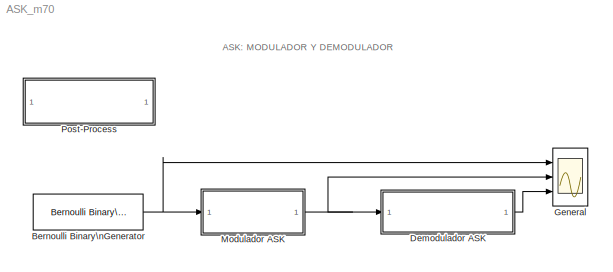
MODEL ASK_m70
KIND model
BLOCK [Reference] Bernoulli Binary\nGenerator  REF=commrandsrc2/Bernoulli Binary\nGenerator
  DialogController = commDDGCreate
  DialogControllerArgs = DataTag0
  FunctionWithSeparateData = off
  P = PZa
  Ports = [0, 1]
  RTWMemSecDataConstants = Inherit from model
  RTWMemSecDataInternal = Inherit from model
  RTWMemSecDataParameters = Inherit from model
  RTWMemSecFuncExecute = Inherit from model
  RTWMemSecFuncInitTerm = Inherit from model
  ShowPortLabels = FromPortIcon
  SourceBlock = commrandsrc2/Bernoulli Binary\nGenerator
  SourceType = Bernoulli Binary Generator
  SystemSampleTime = -1
  Ts = BSTa
  frameBased = off
  orient = off
  outDataType = double
  sampPerFrame = 1
  seed = 81
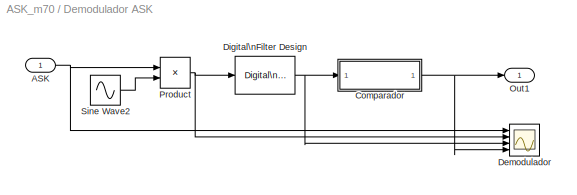
BLOCK [SubSystem] Demodulador ASK
  FunctionWithSeparateData = off
  MaskHideContents = off
  MinAlgLoopOccurrences = off
  Ports = [1, 1]
  PropExecContextOutsideSubsystem = off
  RTWSystemCode = Auto
BLOCK [Inport] Demodulador ASK/ASK
  IconDisplay = Port number
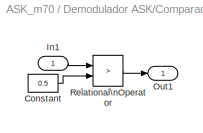
BLOCK [SubSystem] Demodulador ASK/Comparador
  FunctionWithSeparateData = off
  MaskHideContents = off
  MinAlgLoopOccurrences = off
  Ports = [1, 1]
  PropExecContextOutsideSubsystem = off
  RTWSystemCode = Auto
BLOCK [Constant] Demodulador ASK/Comparador/Constant
  Value = 0.5
BLOCK [Inport] Demodulador ASK/Comparador/In1
  IconDisplay = Port number
BLOCK [Outport] Demodulador ASK/Comparador/Out1
  IconDisplay = Port number
BLOCK [RelationalOperator] Demodulador ASK/Comparador/Relational\nOperator
  InputSameDT = off
  LogicOutDataTypeMode = boolean
  Operator = >
BLOCK [Scope] Demodulador ASK/Demodulador
  DataFormat = StructureWithTime
  Floating = off
  LimitDataPoints = off
  NumInputPorts = 4
  Ports = [4]
  SampleTime = 0
  YMax = 4~3~1.5~1.5
  YMin = -4~-0.5~-0.5~-0.5
BLOCK [Reference] Demodulador ASK/Digital\nFilter Design  REF=dsparch4/Digital\nFilter Design
  FunctionWithSeparateData = off
  Ports = [1, 1]
  RTWMemSecDataConstants = Inherit from model
  RTWMemSecDataInternal = Inherit from model
  RTWMemSecDataParameters = Inherit from model
  RTWMemSecFuncExecute = Inherit from model
  RTWMemSecFuncInitTerm = Inherit from model
  ShowPortLabels = FromPortIcon
  SourceBlock = dsparch4/Digital\nFilter Design
  SourceType = Digital Filter Design
  SystemSampleTime = -1
  UserData = DataTag1
  UserDataPersistent = on
  mwdsp_browser_bugfix_var = off
BLOCK [Outport] Demodulador ASK/Out1
  IconDisplay = Port number
BLOCK [Product] Demodulador ASK/Product
  InputSameDT = off
  OutDataTypeMode = Inherit via internal rule
  Ports = [2, 1]
  SaturateOnIntegerOverflow = off
BLOCK [Sin] Demodulador ASK/Sine Wave2
  Amplitude = A3a
  Frequency = 2*10*pi
  Ports = [0, 1]
  SampleTime = STa
  Samples = SxPa
  SineType = Sample based
BLOCK [Scope] General
  DataFormat = StructureWithTime
  Floating = off
  LimitDataPoints = off
  NumInputPorts = 3
  Ports = [3]
  SampleTime = 0
  SaveName = ScopeData3
  YMax = 1.5~5~1.5
  YMin = -0.5~-5~-0.5
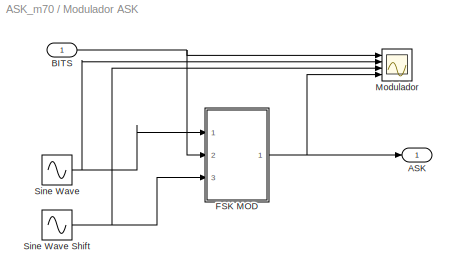
BLOCK [SubSystem] Modulador ASK
  FunctionWithSeparateData = off
  MaskHideContents = off
  MinAlgLoopOccurrences = off
  Ports = [1, 1]
  PropExecContextOutsideSubsystem = off
  RTWSystemCode = Auto
BLOCK [Outport] Modulador ASK/ASK
  IconDisplay = Port number
BLOCK [Inport] Modulador ASK/BITS
  IconDisplay = Port number
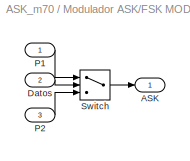
BLOCK [SubSystem] Modulador ASK/FSK MOD
  FunctionWithSeparateData = off
  MaskHideContents = off
  MinAlgLoopOccurrences = off
  Ports = [3, 1]
  PropExecContextOutsideSubsystem = off
  RTWSystemCode = Auto
BLOCK [Outport] Modulador ASK/FSK MOD/ASK
  IconDisplay = Port number
BLOCK [Inport] Modulador ASK/FSK MOD/Datos
  IconDisplay = Port number
  Port = 2
BLOCK [Inport] Modulador ASK/FSK MOD/P1
  IconDisplay = Port number
BLOCK [Inport] Modulador ASK/FSK MOD/P2
  IconDisplay = Port number
  Port = 3
BLOCK [Switch] Modulador ASK/FSK MOD/Switch
  InputSameDT = off
  SaturateOnIntegerOverflow = off
  Threshold = 0.5
BLOCK [Scope] Modulador ASK/Modulador
  DataFormat = StructureWithTime
  Floating = off
  LimitDataPoints = off
  NumInputPorts = 4
  Ports = [4]
  SampleTime = 0
  SaveName = ScopeData1
  YMax = 2~3~3~3
  YMin = -2~-3~-3~-3
BLOCK [Sin] Modulador ASK/Sine Wave
  Amplitude = A1a
  Frequency = 2*10*pi
  Ports = [0, 1]
  SampleTime = STa
  Samples = SxPa
  SineType = Sample based
BLOCK [Sin] Modulador ASK/Sine Wave Shift
  Amplitude = A2a
  Frequency = 2*10*pi
  Phase = -pi
  Ports = [0, 1]
  SampleTime = STa
  Samples = SxPa
  SineType = Sample based
BLOCK [SubSystem] Post-Process
  FunctionWithSeparateData = off
  MaskCallbackString = ||||
  MaskDisplay = disp('Sim Parameters')
  MaskEnableString = on,on,on,on,on
  MaskHideContents = off
  MaskIconFrame = on
  MaskIconOpaque = on
  MaskIconRotate = none
  MaskIconUnits = autoscale
  MaskInitialization = %sim_t = 100; %simulation time\n%BST = 5; % source sample time\nPZa = .4; % probability of zero\n%ST = 1/20; % sample time\n%SxP = 50; % samples per period\n%A1 = 2; % amplitude sine 1 - mod.\n%A2 = .5; % amplitude sine 2 - mod.\nA3a = 1; % amplitude sine 3 - demod.\n\nswitch sim_t\n    case 1\n        sim_t = 50;\n    case 2\n        sim_t = 100;\n    case 3\n        sim_t = 250;\n    case 4\n   ...<+599ch>
  MaskPromptString = Sim Time [100]|Source Sample Time|Freq. factor [1]|Mod - Amp Sine 1 [2]|Mod - Amp Sine 2 [.5]
  MaskStyleString = popup(50|100|250|500|1000),popup(5|8|10|12),edit,edit,edit
  MaskToolTipString = on,on,on,on,on
  MaskTunableValueString = on,on,on,on,on
  MaskValueString = 100|5|5|2|.5
  MaskVariables = sim_t=@1;BSTa=@2;FFa=@3;A1a=@4;A2a=@5;
  MaskVisibilityString = on,on,on,on,on
  MinAlgLoopOccurrences = off
  Ports = []
  PropExecContextOutsideSubsystem = off
  RTWSystemCode = Auto
ANNOTATION (root): ASK: MODULADOR Y DEMODULADOR
NET Bernoulli Binary\nGenerator:1 -> General:1, Modulador ASK:1
NET Demodulador ASK/ASK:1 -> Demodulador ASK/Demodulador:1, Demodulador ASK/Product:1
LINE Demodulador ASK/Comparador/Constant:1 -> Demodulador ASK/Comparador/Relational\nOperator:2
LINE Demodulador ASK/Comparador/In1:1 -> Demodulador ASK/Comparador/Relational\nOperator:1
LINE Demodulador ASK/Comparador/Relational\nOperator:1 -> Demodulador ASK/Comparador/Out1:1
NET Demodulador ASK/Comparador:1 -> Demodulador ASK/Demodulador:4, Demodulador ASK/Out1:1
NET Demodulador ASK/Digital\nFilter Design:1 -> Demodulador ASK/Comparador:1, Demodulador ASK/Demodulador:3
NET Demodulador ASK/Product:1 -> Demodulador ASK/Demodulador:2, Demodulador ASK/Digital\nFilter Design:1
LINE Demodulador ASK/Sine Wave2:1 -> Demodulador ASK/Product:2
LINE Demodulador ASK:1 -> General:3
NET Modulador ASK/BITS:1 -> Modulador ASK/FSK MOD:2, Modulador ASK/Modulador:1
LINE Modulador ASK/FSK MOD/Datos:1 -> Modulador ASK/FSK MOD/Switch:2
LINE Modulador ASK/FSK MOD/P1:1 -> Modulador ASK/FSK MOD/Switch:1
LINE Modulador ASK/FSK MOD/P2:1 -> Modulador ASK/FSK MOD/Switch:3
LINE Modulador ASK/FSK MOD/Switch:1 -> Modulador ASK/FSK MOD/ASK:1
NET Modulador ASK/FSK MOD:1 -> Modulador ASK/ASK:1, Modulador ASK/Modulador:4
NET Modulador ASK/Sine Wave Shift:1 -> Modulador ASK/FSK MOD:3, Modulador ASK/Modulador:3
NET Modulador ASK/Sine Wave:1 -> Modulador ASK/FSK MOD:1, Modulador ASK/Modulador:2
NET Modulador ASK:1 -> Demodulador ASK:1, General:2
note: NET lines group one-source signal fan-out (src -> all destinations, sorted); 1:1 wires keep LINE
